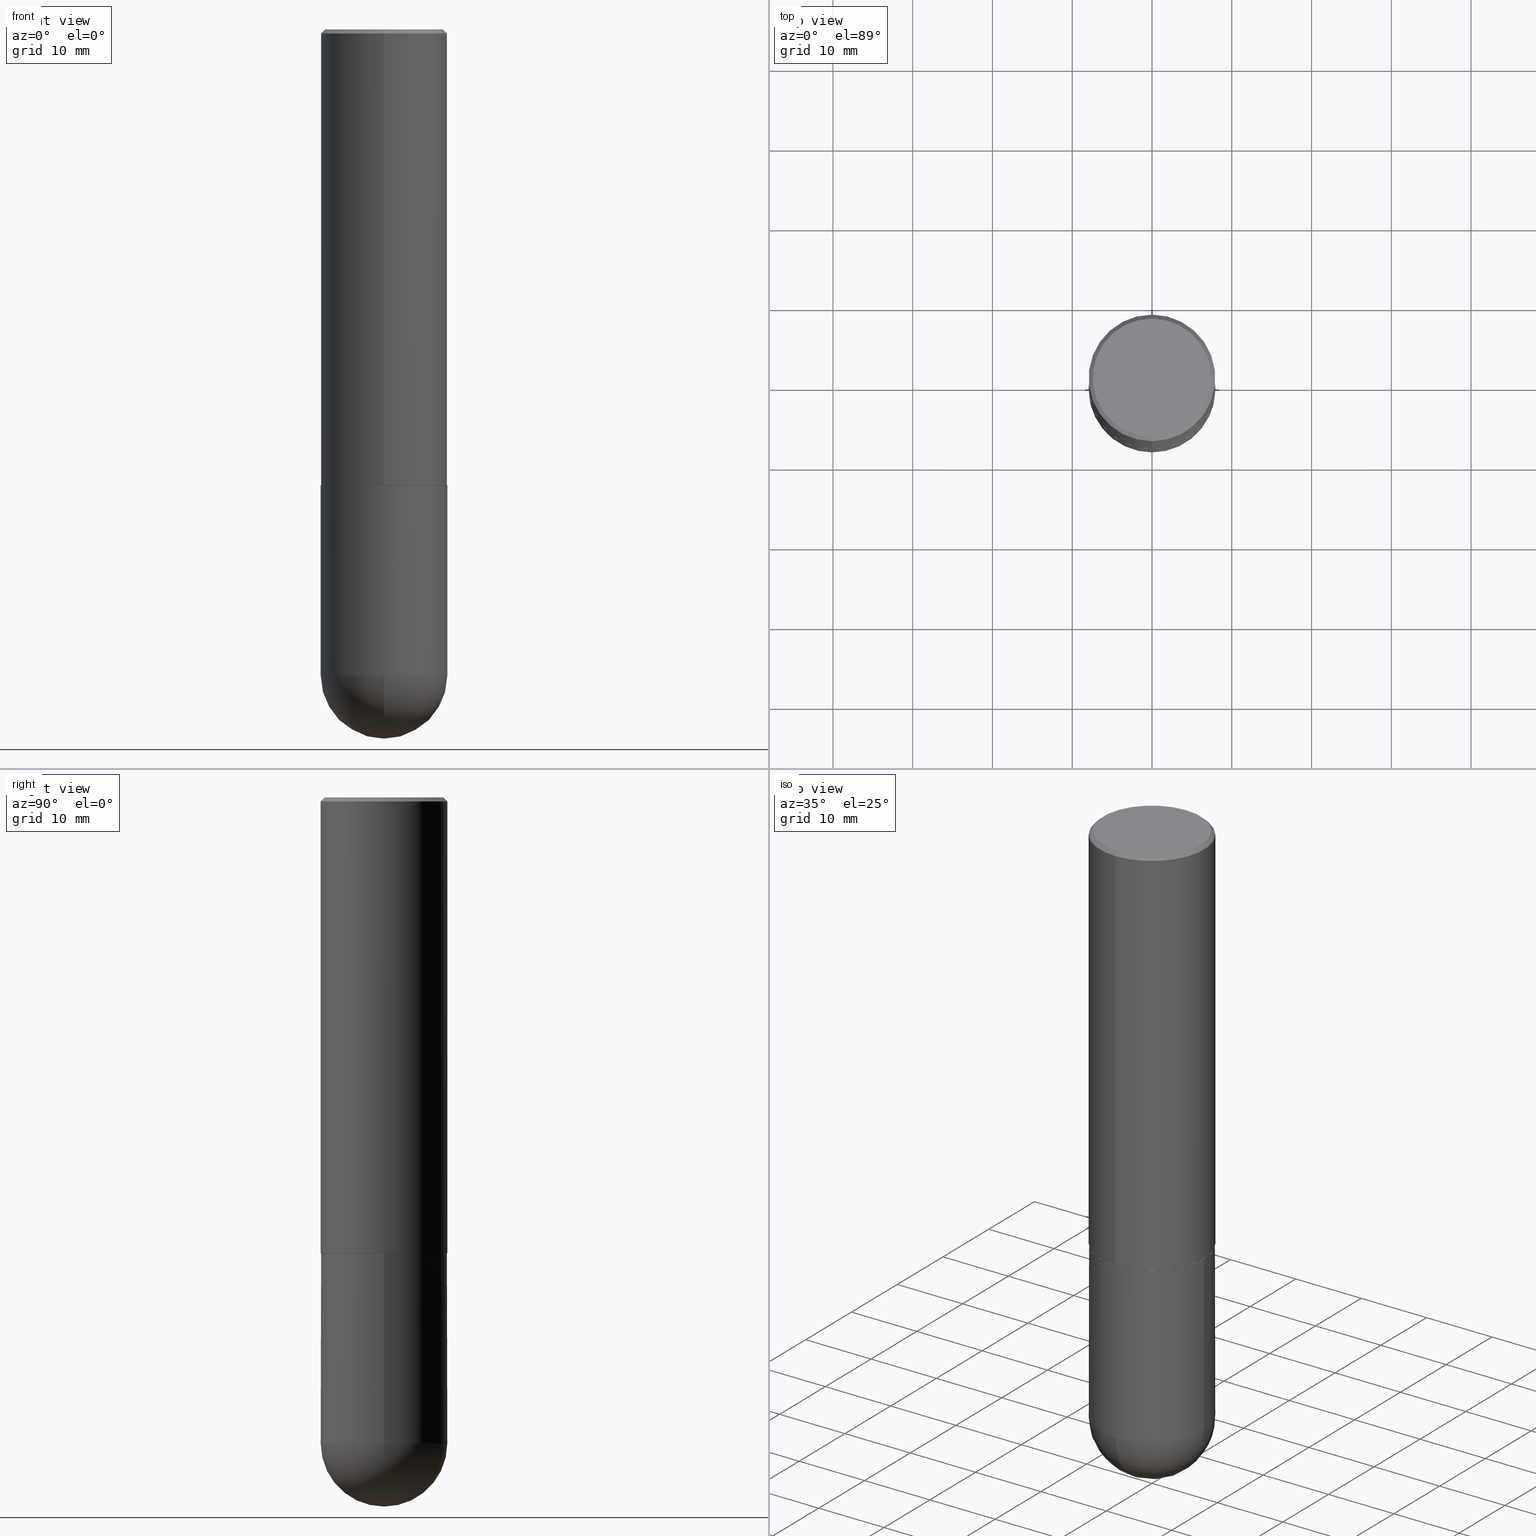
[diagram: canonical four-view strip — front | top / right | iso, engineering-drawing reading convention]
A machine part, canonical four-view strip (front | top / right | iso — engineering-drawing reading convention). The complete STEP part file that produces these views, byte-faithful:
ISO-10303-21;
HEADER;
FILE_DESCRIPTION (( 'STEP AP203' ),
    '1' );
FILE_NAME ('36545.STEP',
    '2024-02-21T19:02:43',
    ( '' ),
    ( '' ),
    'SwSTEP 2.0',
    'SolidWorks 2023',
    '' );
FILE_SCHEMA (( 'CONFIG_CONTROL_DESIGN' ));
ENDSEC;

DATA;
#1 = PERSON_AND_ORGANIZATION ( #398, #189 ) ;
#2 = EDGE_CURVE ( 'NONE', #115, #29, #119, .T. ) ;
#3 = DATE_AND_TIME ( #221, #114 ) ;
#4 = AXIS2_PLACEMENT_3D ( 'NONE', #106, #135, #43 ) ;
#5 =( LENGTH_UNIT ( ) NAMED_UNIT ( * ) SI_UNIT ( $, .METRE. ) );
#6 = VERTEX_POINT ( 'NONE', #150 ) ;
#7 = DIRECTION ( 'NONE',  ( -4.851104656540958753E-15, -0.7071067811865492381, -0.7071067811865457964 ) ) ;
#8 = CALENDAR_DATE ( 2024, 21, 2 ) ;
#9 = ORIENTED_EDGE ( 'NONE', *, *, #307, .T. ) ;
#10 = ADVANCED_FACE ( 'NONE', ( #338 ), #306, .T. ) ;
#11 = CARTESIAN_POINT ( 'NONE',  ( 4.890912166980584074E-31, -6.982999116932638204E-17, -0.02000000000000007327 ) ) ;
#12 = EDGE_LOOP ( 'NONE', ( #325, #410 ) ) ;
#13 = CC_DESIGN_SECURITY_CLASSIFICATION ( #309, ( #231 ) ) ;
#14 = DIRECTION ( 'NONE',  ( -2.445468806185136597E-29, 3.491481338843145583E-15, 1.000000000000000000 ) ) ;
#15 = DIRECTION ( 'NONE',  ( -2.445456083490282999E-29, 3.491499558466306603E-15, 1.000000000000000000 ) ) ;
#16 = VERTEX_POINT ( 'NONE', #235 ) ;
#17 = CARTESIAN_POINT ( 'NONE',  ( 5.502304813916556222E-29, -7.855833012397076871E-15, -2.249999999999999556 ) ) ;
#18 = ORIENTED_EDGE ( 'NONE', *, *, #184, .F. ) ;
#19 = DIRECTION ( 'NONE',  ( -2.445468806185136597E-29, 3.491481338843145583E-15, 1.000000000000000000 ) ) ;
#20 = ORIENTED_EDGE ( 'NONE', *, *, #85, .F. ) ;
#21 = AXIS2_PLACEMENT_3D ( 'NONE', #112, #89, #364 ) ;
#22 = AXIS2_PLACEMENT_3D ( 'NONE', #55, #109, #172 ) ;
#23 = APPROVAL_PERSON_ORGANIZATION ( #347, #316, #261 ) ;
#24 = DIRECTION ( 'NONE',  ( -2.445468806185136877E-29, 3.491481338843145188E-15, 1.000000000000000000 ) ) ;
#25 = CYLINDRICAL_SURFACE ( 'NONE', #113, 0.3125000000000002220 ) ;
#26 = DIRECTION ( 'NONE',  ( -2.445468806185136597E-29, 3.491481338843145583E-15, 1.000000000000000000 ) ) ;
#27 = DESIGN_CONTEXT ( 'detailed design', #406, 'design' ) ;
#28 = AXIS2_PLACEMENT_3D ( 'NONE', #299, #321, #288 ) ;
#29 = VERTEX_POINT ( 'NONE', #78 ) ;
#30 = ADVANCED_FACE ( 'NONE', ( #200 ), #25, .T. ) ;
#31 = ORIENTED_EDGE ( 'NONE', *, *, #254, .T. ) ;
#32 = ORIENTED_EDGE ( 'NONE', *, *, #276, .T. ) ;
#33 = PERSON_AND_ORGANIZATION_ROLE ( 'creator' ) ;
#34 = CARTESIAN_POINT ( 'NONE',  ( 5.502276187853136957E-29, -7.855874006549189956E-15, -2.250000000000000000 ) ) ;
#35 = DATE_TIME_ROLE ( 'creation_date' ) ;
#36 = APPROVAL_ROLE ( '' ) ;
#37 = CONICAL_SURFACE ( 'NONE', #237, 0.3114999999999999991, 0.7853981633974141952 ) ;
#38 = PERSON_AND_ORGANIZATION_ROLE ( 'design_owner' ) ;
#39 = ORIENTED_EDGE ( 'NONE', *, *, #2, .T. ) ;
#40 = ORIENTED_EDGE ( 'NONE', *, *, #2, .F. ) ;
#41 = DIRECTION ( 'NONE',  ( 5.024295867787889629E-15, 0.7071067811865257013, 0.7071067811865691111 ) ) ;
#42 = CLOSED_SHELL ( 'NONE', ( #154, #30, #102, #296, #267, #87, #169, #404 ) ) ;
#43 = DIRECTION ( 'NONE',  ( 1.000000000000000000, -6.982962677686269077E-15, 0.000000000000000000 ) ) ;
#44 = ORIENTED_EDGE ( 'NONE', *, *, #173, .F. ) ;
#45 = EDGE_CURVE ( 'NONE', #286, #358, #333, .T. ) ;
#46 = DIRECTION ( 'NONE',  ( -1.000000000000000000, 7.105427357601001070E-15, -4.926315508542082329E-29 ) ) ;
#47 = PLANE ( 'NONE',  #188 ) ;
#48 = DIRECTION ( 'NONE',  ( -6.982962677686265922E-15, -1.000000000000000000, 3.491499558466306603E-15 ) ) ;
#49 = DIRECTION ( 'NONE',  ( 1.000000000000000000, -6.982962677686269077E-15, 0.000000000000000000 ) ) ;
#50 = CARTESIAN_POINT ( 'NONE',  ( 2.182175836777035261E-15, 0.3124999999999887867, -3.187500000000000888 ) ) ;
#51 = CARTESIAN_POINT ( 'NONE',  ( 2.216893335571567797E-15, 0.3114999999999921720, -2.250000000000001332 ) ) ;
#52 = LINE ( 'NONE', #239, #93 ) ;
#53 = AXIS2_PLACEMENT_3D ( 'NONE', #17, #26, #130 ) ;
#54 = CC_DESIGN_APPROVAL ( #316, ( #309 ) ) ;
#55 = CARTESIAN_POINT ( 'NONE',  ( 2.182175836777013173E-15, 0.3124999999999921729, -2.250000000000000888 ) ) ;
#56 = CARTESIAN_POINT ( 'NONE',  ( 5.499830731769645034E-29, -7.852382506990722396E-15, -2.248999999999999666 ) ) ;
#57 = CONICAL_SURFACE ( 'NONE', #315, 0.3125000000000001665, 0.7853981633974472798 ) ;
#58 = PRODUCT_DEFINITION ( 'UNKNOWN', '', #231, #27 ) ;
#59 = DIRECTION ( 'NONE',  ( -2.445456083490282999E-29, 3.491499558466306603E-15, 1.000000000000000000 ) ) ;
#60 = EDGE_LOOP ( 'NONE', ( #194, #259, #108, #44 ) ) ;
#61 = FACE_OUTER_BOUND ( 'NONE', #318, .T. ) ;
#62 = EDGE_CURVE ( 'NONE', #6, #160, #242, .T. ) ;
#63 = APPROVAL_STATUS ( 'not_yet_approved' ) ;
#64 = PERSON_AND_ORGANIZATION ( #398, #189 ) ;
#65 = ORIENTED_EDGE ( 'NONE', *, *, #252, .T. ) ;
#66 = AXIS2_PLACEMENT_3D ( 'NONE', #366, #359, #138 ) ;
#67 = ORIENTED_EDGE ( 'NONE', *, *, #175, .T. ) ;
#68 = EDGE_CURVE ( 'NONE', #160, #6, #181, .T. ) ;
#69 = DIRECTION ( 'NONE',  ( 6.982962677686265922E-15, 1.000000000000000000, -3.491499558466306603E-15 ) ) ;
#70 = CARTESIAN_POINT ( 'NONE',  ( 2.112346210000095838E-15, 0.2924999999999999267, -8.206382045769005542E-16 ) ) ;
#71 = VERTEX_POINT ( 'NONE', #146 ) ;
#72 = FACE_OUTER_BOUND ( 'NONE', #282, .T. ) ;
#73 = CIRCLE ( 'NONE', #53, 0.3125000000000000000 ) ;
#74 = CARTESIAN_POINT ( 'NONE',  ( 0.000000000000000000, 0.000000000000000000, 0.000000000000000000 ) ) ;
#75 = ORIENTED_EDGE ( 'NONE', *, *, #374, .T. ) ;
#76 = AXIS2_PLACEMENT_3D ( 'NONE', #330, #211, #49 ) ;
#77 = CARTESIAN_POINT ( 'NONE',  ( 2.220446049250314264E-15, 0.3125000000000002220, -1.091093612020721528E-15 ) ) ;
#78 = CARTESIAN_POINT ( 'NONE',  ( -2.075300644325888282E-15, -0.2924999999999999267, 1.221889037125888235E-15 ) ) ;
#79 = DIRECTION ( 'NONE',  ( -2.445468806185136877E-29, 3.491481338843145188E-15, 1.000000000000000000 ) ) ;
#80 = DIRECTION ( 'NONE',  ( -2.445456083490282999E-29, 3.491499558466306603E-15, 1.000000000000000000 ) ) ;
#81 = DIRECTION ( 'NONE',  ( -6.982962677686265922E-15, -1.000000000000000000, 3.491499558466306603E-15 ) ) ;
#82 = ADVANCED_FACE ( 'NONE', ( #367 ), #298, .T. ) ;
#83 = FACE_OUTER_BOUND ( 'NONE', #12, .T. ) ;
#84 = VECTOR ( 'NONE', #368, 39.37007874015748143 ) ;
#85 = EDGE_CURVE ( 'NONE', #6, #349, #52, .T. ) ;
#86 = ORIENTED_EDGE ( 'NONE', *, *, #85, .T. ) ;
#87 = ADVANCED_FACE ( 'NONE', ( #61 ), #37, .T. ) ;
#88 = CIRCLE ( 'NONE', #66, 0.2924999999999999267 ) ;
#89 = DIRECTION ( 'NONE',  ( -1.000000000000000000, 6.982962677686265922E-15, -4.883557194083112901E-29 ) ) ;
#90 = VERTEX_POINT ( 'NONE', #91 ) ;
#91 = CARTESIAN_POINT ( 'NONE',  ( 2.220446049250342269E-15, 0.3124999999999924505, -2.249000000000000998 ) ) ;
#92 = CARTESIAN_POINT ( 'NONE',  ( 0.000000000000000000, 0.000000000000000000, 0.000000000000000000 ) ) ;
#93 = VECTOR ( 'NONE', #245, 39.37007874015748854 ) ;
#94 = CC_DESIGN_PERSON_AND_ORGANIZATION_ASSIGNMENT ( #125, #117, ( #231 ) ) ;
#95 = DIRECTION ( 'NONE',  ( 0.000000000000000000, 0.000000000000000000, 1.000000000000000000 ) ) ;
#96 = CLOSED_SHELL ( 'NONE', ( #122, #10, #82, #207, #180 ) ) ;
#97 = DIRECTION ( 'NONE',  ( 2.445456083490282999E-29, -3.491499558466306603E-15, -1.000000000000000000 ) ) ;
#98 = VECTOR ( 'NONE', #80, 39.37007874015748143 ) ;
#99 = ORIENTED_EDGE ( 'NONE', *, *, #374, .F. ) ;
#100 = LINE ( 'NONE', #250, #260 ) ;
#101 = ORIENTED_EDGE ( 'NONE', *, *, #307, .F. ) ;
#102 = ADVANCED_FACE ( 'NONE', ( #310 ), #378, .T. ) ;
#103 = CARTESIAN_POINT ( 'NONE',  ( 5.502276187853136957E-29, -7.855874006549188378E-15, -2.249999999999999556 ) ) ;
#104 = EDGE_LOOP ( 'NONE', ( #39, #67 ) ) ;
#105 = AXIS2_PLACEMENT_3D ( 'NONE', #74, #198, #165 ) ;
#106 = CARTESIAN_POINT ( 'NONE',  ( 7.794931819715121781E-29, -1.112909676756252622E-14, -3.187500000000000000 ) ) ;
#107 = CARTESIAN_POINT ( 'NONE',  ( 0.000000000000000000, 0.000000000000000000, 0.000000000000000000 ) ) ;
#108 = ORIENTED_EDGE ( 'NONE', *, *, #254, .F. ) ;
#109 = DIRECTION ( 'NONE',  ( 2.438088387897960049E-29, -3.491481338843145188E-15, -1.000000000000000000 ) ) ;
#110 = EDGE_CURVE ( 'NONE', #16, #71, #382, .T. ) ;
#111 = DIRECTION ( 'NONE',  ( 6.982962677686265922E-15, 1.000000000000000000, -3.496765431890253764E-15 ) ) ;
#112 = CARTESIAN_POINT ( 'NONE',  ( 7.463812041801236655E-29, -1.160327913570257494E-14, -3.187500000000000000 ) ) ;
#113 = AXIS2_PLACEMENT_3D ( 'NONE', #139, #371, #81 ) ;
#114 = LOCAL_TIME ( 14, 2, 43.00000000000000000, #279 ) ;
#115 = VERTEX_POINT ( 'NONE', #70 ) ;
#116 = ORIENTED_EDGE ( 'NONE', *, *, #62, .T. ) ;
#117 = PERSON_AND_ORGANIZATION_ROLE ( 'design_supplier' ) ;
#118 = SECURITY_CLASSIFICATION_LEVEL ( 'unclassified' ) ;
#119 = CIRCLE ( 'NONE', #361, 0.2924999999999999267 ) ;
#120 = AXIS2_PLACEMENT_3D ( 'NONE', #340, #59, #263 ) ;
#121 =( NAMED_UNIT ( * ) SI_UNIT ( $, .STERADIAN. ) SOLID_ANGLE_UNIT ( ) );
#122 = ADVANCED_FACE ( 'NONE', ( #163 ), #291, .T. ) ;
#123 = CALENDAR_DATE ( 2024, 21, 2 ) ;
#124 = EDGE_LOOP ( 'NONE', ( #272, #370, #18, #158, #388 ) ) ;
#125 = PERSON_AND_ORGANIZATION ( #398, #189 ) ;
#126 = ORIENTED_EDGE ( 'NONE', *, *, #110, .T. ) ;
#127 = CARTESIAN_POINT ( 'NONE',  ( 5.502304813916556222E-29, -7.855833012397076871E-15, -2.249999999999999556 ) ) ;
#128 = CIRCLE ( 'NONE', #308, 0.3125000000000002776 ) ;
#129 = LINE ( 'NONE', #233, #408 ) ;
#130 = DIRECTION ( 'NONE',  ( 1.000000000000000000, -6.982962677686269077E-15, 0.000000000000000000 ) ) ;
#131 = VERTEX_POINT ( 'NONE', #256 ) ;
#132 = CARTESIAN_POINT ( 'NONE',  ( -0.3125000000000000000, -7.272018840729490833E-15, -3.187500000000000000 ) ) ;
#133 = CARTESIAN_POINT ( 'NONE',  ( 7.463812041801236655E-29, -1.160327913570257494E-14, -3.187500000000000000 ) ) ;
#134 = CIRCLE ( 'NONE', #295, 0.3125000000000000000 ) ;
#135 = DIRECTION ( 'NONE',  ( -2.445468806185136597E-29, 3.491481338843145583E-15, 1.000000000000000000 ) ) ;
#136 = ORIENTED_EDGE ( 'NONE', *, *, #156, .F. ) ;
#137 = PRODUCT ( '36545', '36545', '', ( #217 ) ) ;
#138 = DIRECTION ( 'NONE',  ( -6.982962677686265133E-15, -1.000000000000000000, 3.491499558466306603E-15 ) ) ;
#139 = CARTESIAN_POINT ( 'NONE',  ( 0.000000000000000000, 0.000000000000000000, 0.000000000000000000 ) ) ;
#140 = CC_DESIGN_PERSON_AND_ORGANIZATION_ASSIGNMENT ( #1, #311, ( #231 ) ) ;
#141 = LINE ( 'NONE', #77, #98 ) ;
#142 = DIRECTION ( 'NONE',  ( -2.445456083490282999E-29, 3.491499558466306603E-15, 1.000000000000000000 ) ) ;
#143 = AXIS2_PLACEMENT_3D ( 'NONE', #56, #142, #403 ) ;
#144 = DIMENSIONAL_EXPONENTS ( 1.000000000000000000, 0.000000000000000000, 0.000000000000000000, 0.000000000000000000, 0.000000000000000000, 0.000000000000000000, 0.000000000000000000 ) ;
#145 = ORIENTED_EDGE ( 'NONE', *, *, #68, .T. ) ;
#146 = CARTESIAN_POINT ( 'NONE',  ( -2.143905624303604008E-15, -0.3125000000000002220, -0.01999999999999898040 ) ) ;
#147 = EDGE_CURVE ( 'NONE', #289, #314, #399, .T. ) ;
#148 = AXIS2_PLACEMENT_3D ( 'NONE', #266, #400, #111 ) ;
#149 = APPROVAL_PERSON_ORGANIZATION ( #247, #201, #36 ) ;
#150 = CARTESIAN_POINT ( 'NONE',  ( -2.175192874099216718E-15, -0.3115000000000078817, -2.249999999999999112 ) ) ;
#151 = APPROVAL_STATUS ( 'not_yet_approved' ) ;
#152 = DIRECTION ( 'NONE',  ( -2.445456083490282999E-29, 3.491499558466306603E-15, 1.000000000000000000 ) ) ;
#153 = COORDINATED_UNIVERSAL_TIME_OFFSET ( 5, 0, .BEHIND. ) ;
#154 = ADVANCED_FACE ( 'NONE', ( #258 ), #253, .T. ) ;
#155 = CIRCLE ( 'NONE', #301, 0.3125000000000002776 ) ;
#156 = EDGE_CURVE ( 'NONE', #349, #71, #234, .T. ) ;
#157 = AXIS2_PLACEMENT_3D ( 'NONE', #92, #95, #313 ) ;
#158 = ORIENTED_EDGE ( 'NONE', *, *, #342, .F. ) ;
#159 = APPLICATION_PROTOCOL_DEFINITION ( 'international standard', 'config_control_design', 1994, #406 ) ;
#160 = VERTEX_POINT ( 'NONE', #51 ) ;
#161 = CIRCLE ( 'NONE', #4, 0.3125000000000000000 ) ;
#162 = LOCAL_TIME ( 14, 2, 43.00000000000000000, #275 ) ;
#163 = FACE_OUTER_BOUND ( 'NONE', #124, .T. ) ;
#164 = ORIENTED_EDGE ( 'NONE', *, *, #110, .F. ) ;
#165 = DIRECTION ( 'NONE',  ( 1.000000000000000000, -6.982962677686266711E-15, 4.876176775795936353E-29 ) ) ;
#166 = CARTESIAN_POINT ( 'NONE',  ( 2.182175836776959530E-15, 0.3125000000000000555, -0.02000000000000116615 ) ) ;
#167 = CARTESIAN_POINT ( 'NONE',  ( 7.794931819715121781E-29, -1.112909676756252622E-14, -3.187500000000000000 ) ) ;
#168 = CARTESIAN_POINT ( 'NONE',  ( 5.502276187853136957E-29, -7.855874006549189956E-15, -2.250000000000000000 ) ) ;
#169 = ADVANCED_FACE ( 'NONE', ( #387 ), #47, .F. ) ;
#170 = CYLINDRICAL_SURFACE ( 'NONE', #105, 0.3125000000000000000 ) ;
#171 = DIRECTION ( 'NONE',  ( -6.982962677686265922E-15, -1.000000000000000000, 3.507991003100177457E-15 ) ) ;
#172 = DIRECTION ( 'NONE',  ( -1.000000000000000000, 6.982962677686265922E-15, -4.876176775795935793E-29 ) ) ;
#173 = EDGE_CURVE ( 'NONE', #358, #289, #161, .T. ) ;
#174 = AXIS2_PLACEMENT_3D ( 'NONE', #107, #357, #331 ) ;
#175 = EDGE_CURVE ( 'NONE', #29, #115, #88, .T. ) ;
#176 = ORIENTED_EDGE ( 'NONE', *, *, #303, .T. ) ;
#177 = MANIFOLD_SOLID_BREP ( 'Body-Move/Copy2[2]', #42 ) ;
#178 = EDGE_LOOP ( 'NONE', ( #116, #9, #240, #20 ) ) ;
#179 = DIRECTION ( 'NONE',  ( -2.445456083490282999E-29, 3.491499558466306603E-15, 1.000000000000000000 ) ) ;
#180 = ADVANCED_FACE ( 'NONE', ( #336 ), #170, .T. ) ;
#181 = CIRCLE ( 'NONE', #120, 0.3114999999999999991 ) ;
#182 = CIRCLE ( 'NONE', #143, 0.3125000000000002776 ) ;
#183 = DIRECTION ( 'NONE',  ( -6.982962677686265922E-15, -1.000000000000000000, 3.507991003100177457E-15 ) ) ;
#184 = EDGE_CURVE ( 'NONE', #229, #314, #73, .T. ) ;
#185 = COORDINATED_UNIVERSAL_TIME_OFFSET ( 5, 0, .BEHIND. ) ;
#186 =( CONVERSION_BASED_UNIT ( 'INCH', #317 ) LENGTH_UNIT ( ) NAMED_UNIT ( #144 ) );
#187 = ORIENTED_EDGE ( 'NONE', *, *, #303, .F. ) ;
#188 = AXIS2_PLACEMENT_3D ( 'NONE', #103, #228, #48 ) ;
#189 = ORGANIZATION ( 'UNSPECIFIED', 'UNSPECIFIED', '' ) ;
#190 = PERSON_AND_ORGANIZATION ( #398, #189 ) ;
#191 = ORIENTED_EDGE ( 'NONE', *, *, #156, .T. ) ;
#192 = CC_DESIGN_DATE_AND_TIME_ASSIGNMENT ( #281, #35, ( #58 ) ) ;
#193 = DIRECTION ( 'NONE',  ( -2.445468806185136597E-29, 3.491481338843145583E-15, 1.000000000000000000 ) ) ;
#194 = ORIENTED_EDGE ( 'NONE', *, *, #210, .F. ) ;
#196 = DIRECTION ( 'NONE',  ( 1.000000000000000000, -6.982962677686269077E-15, 0.000000000000000000 ) ) ;
#195 = CALENDAR_DATE ( 2024, 21, 2 ) ;
#197 = VECTOR ( 'NONE', #24, 39.37007874015748143 ) ;
#198 = DIRECTION ( 'NONE',  ( -2.445468806185136597E-29, 3.491481338843145583E-15, 1.000000000000000000 ) ) ;
#199 = DIRECTION ( 'NONE',  ( 1.000000000000000000, -6.982962677686265922E-15, 4.883557194083112340E-29 ) ) ;
#200 = FACE_OUTER_BOUND ( 'NONE', #249, .T. ) ;
#201 = APPROVAL ( #284, 'UNSPECIFIED' ) ;
#202 = DIRECTION ( 'NONE',  ( 6.982962677686265133E-15, 1.000000000000000000, -3.496765431890254947E-15 ) ) ;
#203 = CARTESIAN_POINT ( 'NONE',  ( 5.499830731769645034E-29, -7.852382506990722396E-15, -2.248999999999999666 ) ) ;
#204 = EDGE_LOOP ( 'NONE', ( #222, #65, #191, #164 ) ) ;
#205 = AXIS2_PLACEMENT_3D ( 'NONE', #168, #294, #171 ) ;
#206 = DIRECTION ( 'NONE',  ( -6.982962677686265133E-15, -1.000000000000000000, 3.496765431890254947E-15 ) ) ;
#207 = ADVANCED_FACE ( 'NONE', ( #83 ), #265, .F. ) ;
#208 = ORIENTED_EDGE ( 'NONE', *, *, #252, .F. ) ;
#209 = AXIS2_PLACEMENT_3D ( 'NONE', #11, #393, #290 ) ;
#210 = EDGE_CURVE ( 'NONE', #244, #358, #270, .T. ) ;
#211 = DIRECTION ( 'NONE',  ( -2.445468806185136597E-29, 3.491481338843145583E-15, 1.000000000000000000 ) ) ;
#212 = EDGE_LOOP ( 'NONE', ( #305, #396 ) ) ;
#213 = DIRECTION ( 'NONE',  ( 6.982962677686265133E-15, 1.000000000000000000, -3.496765431890254947E-15 ) ) ;
#214 = DATE_TIME_ROLE ( 'classification_date' ) ;
#215 = APPLICATION_CONTEXT ( 'configuration controlled 3d designs of mechanical parts and assemblies' ) ;
#216 = EDGE_CURVE ( 'NONE', #90, #16, #141, .T. ) ;
#217 = MECHANICAL_CONTEXT ( 'NONE', #215, 'mechanical' ) ;
#218 = ORIENTED_EDGE ( 'NONE', *, *, #337, .F. ) ;
#219 = VECTOR ( 'NONE', #7, 39.37007874015748143 ) ;
#220 = CARTESIAN_POINT ( 'NONE',  ( 2.042516583223232145E-15, 0.2924999999999999267, -9.209509127141472772E-16 ) ) ;
#221 = CALENDAR_DATE ( 2024, 21, 2 ) ;
#222 = ORIENTED_EDGE ( 'NONE', *, *, #216, .F. ) ;
#223 = PRODUCT_RELATED_PRODUCT_CATEGORY ( 'detail', '', ( #137 ) ) ;
#224 = CARTESIAN_POINT ( 'NONE',  ( -2.182175836776905099E-15, -0.3125000000000081601, -2.248999999999998778 ) ) ;
#225 = DIRECTION ( 'NONE',  ( 1.000000000000000000, -6.982962677686269077E-15, 0.000000000000000000 ) ) ;
#226 = ORIENTED_EDGE ( 'NONE', *, *, #342, .T. ) ;
#227 = DATE_AND_TIME ( #195, #383 ) ;
#228 = DIRECTION ( 'NONE',  ( -2.445456083490282718E-29, 3.491499558466306603E-15, 1.000000000000000000 ) ) ;
#229 = VERTEX_POINT ( 'NONE', #268 ) ;
#230 = VECTOR ( 'NONE', #323, 39.37007874015748143 ) ;
#231 = PRODUCT_DEFINITION_FORMATION_WITH_SPECIFIED_SOURCE ( 'ANY', '', #137, .NOT_KNOWN. ) ;
#232 = CARTESIAN_POINT ( 'NONE',  ( -2.182175836776959530E-15, -0.3125000000000002220, 1.091093612020721528E-15 ) ) ;
#233 = CARTESIAN_POINT ( 'NONE',  ( 0.3125000000000000000, -2.182175836776958347E-15, 1.523805242436230075E-29 ) ) ;
#234 = LINE ( 'NONE', #232, #84 ) ;
#235 = CARTESIAN_POINT ( 'NONE',  ( 2.182175836776959530E-15, 0.3125000000000000555, -0.02000000000000116615 ) ) ;
#236 = CARTESIAN_POINT ( 'NONE',  ( -0.3125000000000000000, 2.220446049250313081E-15, -1.537167215704658232E-29 ) ) ;
#237 = AXIS2_PLACEMENT_3D ( 'NONE', #34, #152, #183 ) ;
#238 =( GEOMETRIC_REPRESENTATION_CONTEXT ( 3 ) GLOBAL_UNCERTAINTY_ASSIGNED_CONTEXT ( ( #355 ) ) GLOBAL_UNIT_ASSIGNED_CONTEXT ( ( #186, #381, #121 ) ) REPRESENTATION_CONTEXT ( 'NONE', 'WORKASPACE' ) );
#239 = CARTESIAN_POINT ( 'NONE',  ( -2.175192874099216718E-15, -0.3115000000000078817, -2.249999999999999112 ) ) ;
#240 = ORIENTED_EDGE ( 'NONE', *, *, #409, .F. ) ;
#241 = ADVANCED_BREP_SHAPE_REPRESENTATION ( '36545', ( #326, #177, #157 ), #238 ) ;
#242 = CIRCLE ( 'NONE', #205, 0.3114999999999999991 ) ;
#243 = PRODUCT_DEFINITION_SHAPE ( 'NONE', 'NONE',  #58 ) ;
#244 = VERTEX_POINT ( 'NONE', #401 ) ;
#245 = DIRECTION ( 'NONE',  ( -4.937700262164378437E-15, -0.7071067811865208164, 0.7071067811865739960 ) ) ;
#246 = PERSON_AND_ORGANIZATION ( #398, #189 ) ;
#247 = PERSON_AND_ORGANIZATION ( #398, #189 ) ;
#248 = APPROVAL_ROLE ( '' ) ;
#249 = EDGE_LOOP ( 'NONE', ( #319, #322, #187, #136 ) ) ;
#250 = CARTESIAN_POINT ( 'NONE',  ( 2.213340621892766504E-15, 0.3114999999999921720, -2.250000000000001332 ) ) ;
#251 = ORIENTED_EDGE ( 'NONE', *, *, #276, .F. ) ;
#252 = EDGE_CURVE ( 'NONE', #90, #349, #128, .T. ) ;
#253 = CONICAL_SURFACE ( 'NONE', #28, 0.3114999999999999991, 0.7853981633974141952 ) ;
#254 = EDGE_CURVE ( 'NONE', #289, #131, #362, .T. ) ;
#255 = PLANE ( 'NONE',  #271 ) ;
#256 = CARTESIAN_POINT ( 'NONE',  ( -2.220446049250237350E-15, -0.3125000000000114908, -3.187499999999998668 ) ) ;
#257 = ORIENTED_EDGE ( 'NONE', *, *, #45, .F. ) ;
#258 = FACE_OUTER_BOUND ( 'NONE', #178, .T. ) ;
#259 = ORIENTED_EDGE ( 'NONE', *, *, #285, .T. ) ;
#260 = VECTOR ( 'NONE', #41, 39.37007874015748854 ) ;
#261 = APPROVAL_ROLE ( '' ) ;
#262 = FACE_OUTER_BOUND ( 'NONE', #204, .T. ) ;
#263 = DIRECTION ( 'NONE',  ( -6.982962677686265922E-15, -1.000000000000000000, 3.507991003100177457E-15 ) ) ;
#264 = APPROVAL_DATE_TIME ( #227, #316 ) ;
#265 = PLANE ( 'NONE',  #22 ) ;
#266 = CARTESIAN_POINT ( 'NONE',  ( 7.463812041801236655E-29, -1.160327913570257494E-14, -3.187500000000000000 ) ) ;
#267 = ADVANCED_FACE ( 'NONE', ( #262 ), #395, .T. ) ;
#268 = CARTESIAN_POINT ( 'NONE',  ( 0.3125000000000000000, -1.003800884917403522E-14, -2.249999999999999556 ) ) ;
#269 = CC_DESIGN_PERSON_AND_ORGANIZATION_ASSIGNMENT ( #64, #33, ( #58 ) ) ;
#270 = CIRCLE ( 'NONE', #273, 0.3125000000000002776 ) ;
#271 = AXIS2_PLACEMENT_3D ( 'NONE', #220, #352, #69 ) ;
#272 = ORIENTED_EDGE ( 'NONE', *, *, #173, .T. ) ;
#273 = AXIS2_PLACEMENT_3D ( 'NONE', #133, #199, #363 ) ;
#274 = ORIENTED_EDGE ( 'NONE', *, *, #210, .T. ) ;
#275 = COORDINATED_UNIVERSAL_TIME_OFFSET ( 5, 0, .BEHIND. ) ;
#276 = EDGE_CURVE ( 'NONE', #131, #286, #350, .T. ) ;
#277 = CARTESIAN_POINT ( 'NONE',  ( 4.890912166980584074E-31, -6.982999116932638204E-17, -0.02000000000000007327 ) ) ;
#278 = CALENDAR_DATE ( 2024, 21, 2 ) ;
#279 = COORDINATED_UNIVERSAL_TIME_OFFSET ( 5, 0, .BEHIND. ) ;
#280 = AXIS2_PLACEMENT_3D ( 'NONE', #297, #193, #196 ) ;
#281 = DATE_AND_TIME ( #8, #372 ) ;
#282 = EDGE_LOOP ( 'NONE', ( #99, #40, #341, #126 ) ) ;
#283 = CARTESIAN_POINT ( 'NONE',  ( -2.143905624303604008E-15, -0.3125000000000002220, -0.01999999999999898040 ) ) ;
#284 = APPROVAL_STATUS ( 'not_yet_approved' ) ;
#285 = EDGE_CURVE ( 'NONE', #244, #131, #155, .T. ) ;
#286 = VERTEX_POINT ( 'NONE', #384 ) ;
#287 = AXIS2_PLACEMENT_3D ( 'NONE', #344, #375, #206 ) ;
#288 = DIRECTION ( 'NONE',  ( -6.982962677686265922E-15, -1.000000000000000000, 3.507991003100177457E-15 ) ) ;
#289 = VERTEX_POINT ( 'NONE', #132 ) ;
#290 = DIRECTION ( 'NONE',  ( -6.982962677686265133E-15, -1.000000000000000000, 3.496765431890254947E-15 ) ) ;
#291 = CYLINDRICAL_SURFACE ( 'NONE', #346, 0.3125000000000000000 ) ;
#292 = CARTESIAN_POINT ( 'NONE',  ( -0.3125000000000000000, -7.272018840729487678E-15, -2.249999999999999556 ) ) ;
#293 = DIRECTION ( 'NONE',  ( -2.445468806185136597E-29, 3.491481338843145583E-15, 1.000000000000000000 ) ) ;
#294 = DIRECTION ( 'NONE',  ( -2.445456083490282999E-29, 3.491499558466306603E-15, 1.000000000000000000 ) ) ;
#295 = AXIS2_PLACEMENT_3D ( 'NONE', #127, #14, #389 ) ;
#296 = ADVANCED_FACE ( 'NONE', ( #72 ), #57, .T. ) ;
#297 = CARTESIAN_POINT ( 'NONE',  ( 7.794931819715121781E-29, -1.112909676756252622E-14, -3.187500000000000000 ) ) ;
#298 = SPHERICAL_SURFACE ( 'NONE', #148, 0.3125000000000002776 ) ;
#299 = CARTESIAN_POINT ( 'NONE',  ( 5.502276187853136957E-29, -7.855874006549189956E-15, -2.250000000000000000 ) ) ;
#300 = EDGE_CURVE ( 'NONE', #115, #16, #365, .T. ) ;
#301 = AXIS2_PLACEMENT_3D ( 'NONE', #343, #46, #327 ) ;
#302 = CC_DESIGN_APPROVAL ( #386, ( #231 ) ) ;
#303 = EDGE_CURVE ( 'NONE', #71, #16, #339, .T. ) ;
#304 = ORIENTED_EDGE ( 'NONE', *, *, #175, .F. ) ;
#305 = ORIENTED_EDGE ( 'NONE', *, *, #62, .F. ) ;
#306 = SPHERICAL_SURFACE ( 'NONE', #21, 0.3125000000000002776 ) ;
#307 = EDGE_CURVE ( 'NONE', #160, #90, #100, .T. ) ;
#308 = AXIS2_PLACEMENT_3D ( 'NONE', #203, #15, #329 ) ;
#309 = SECURITY_CLASSIFICATION ( '', '', #118 ) ;
#310 = FACE_OUTER_BOUND ( 'NONE', #385, .T. ) ;
#311 = PERSON_AND_ORGANIZATION_ROLE ( 'creator' ) ;
#312 = CC_DESIGN_PERSON_AND_ORGANIZATION_ASSIGNMENT ( #190, #38, ( #137 ) ) ;
#313 = DIRECTION ( 'NONE',  ( 1.000000000000000000, 0.000000000000000000, 0.000000000000000000 ) ) ;
#314 = VERTEX_POINT ( 'NONE', #292 ) ;
#315 = AXIS2_PLACEMENT_3D ( 'NONE', #320, #97, #202 ) ;
#316 = APPROVAL ( #63, 'UNSPECIFIED' ) ;
#317 = LENGTH_MEASURE_WITH_UNIT ( LENGTH_MEASURE( 0.02539999999999999897 ), #5 );
#318 = EDGE_LOOP ( 'NONE', ( #101, #145, #86, #208 ) ) ;
#319 = ORIENTED_EDGE ( 'NONE', *, *, #409, .T. ) ;
#320 = CARTESIAN_POINT ( 'NONE',  ( 4.890912166980584074E-31, -6.982999116932638204E-17, -0.02000000000000007327 ) ) ;
#321 = DIRECTION ( 'NONE',  ( -2.445456083490282999E-29, 3.491499558466306603E-15, 1.000000000000000000 ) ) ;
#322 = ORIENTED_EDGE ( 'NONE', *, *, #216, .T. ) ;
#323 = DIRECTION ( 'NONE',  ( 4.937700262164542520E-15, 0.7071067811865443531, -0.7071067811865506814 ) ) ;
#324 = CARTESIAN_POINT ( 'NONE',  ( 0.000000000000000000, 0.000000000000000000, 0.000000000000000000 ) ) ;
#325 = ORIENTED_EDGE ( 'NONE', *, *, #184, .T. ) ;
#326 = MANIFOLD_SOLID_BREP ( 'Body-Move/Copy2[1]', #96 ) ;
#327 = DIRECTION ( 'NONE',  ( -7.105427357601000281E-15, -1.000000000000000000, 0.000000000000000000 ) ) ;
#328 = COORDINATED_UNIVERSAL_TIME_OFFSET ( 5, 0, .BEHIND. ) ;
#329 = DIRECTION ( 'NONE',  ( -6.982962677686265922E-15, -1.000000000000000000, 3.496765431890253764E-15 ) ) ;
#330 = CARTESIAN_POINT ( 'NONE',  ( 7.794931819715121781E-29, -1.112909676756252622E-14, -3.187500000000000000 ) ) ;
#331 = DIRECTION ( 'NONE',  ( -6.982962677686265922E-15, -1.000000000000000000, 3.491499558466306603E-15 ) ) ;
#332 = ORIENTED_EDGE ( 'NONE', *, *, #300, .F. ) ;
#333 = CIRCLE ( 'NONE', #76, 0.3125000000000000000 ) ;
#334 = CC_DESIGN_DATE_AND_TIME_ASSIGNMENT ( #377, #214, ( #309 ) ) ;
#335 = APPROVAL_PERSON_ORGANIZATION ( #345, #386, #248 ) ;
#336 = FACE_OUTER_BOUND ( 'NONE', #354, .T. ) ;
#337 = EDGE_CURVE ( 'NONE', #314, #229, #134, .T. ) ;
#338 = FACE_OUTER_BOUND ( 'NONE', #60, .T. ) ;
#339 = CIRCLE ( 'NONE', #209, 0.3125000000000001665 ) ;
#340 = CARTESIAN_POINT ( 'NONE',  ( 5.502276187853136957E-29, -7.855874006549189956E-15, -2.250000000000000000 ) ) ;
#341 = ORIENTED_EDGE ( 'NONE', *, *, #300, .T. ) ;
#342 = EDGE_CURVE ( 'NONE', #286, #229, #129, .T. ) ;
#343 = CARTESIAN_POINT ( 'NONE',  ( 7.463812041801236655E-29, -1.160327913570257494E-14, -3.187500000000000000 ) ) ;
#344 = CARTESIAN_POINT ( 'NONE',  ( 4.890912166980584074E-31, -6.982999116932638204E-17, -0.02000000000000007327 ) ) ;
#345 = PERSON_AND_ORGANIZATION ( #398, #189 ) ;
#346 = AXIS2_PLACEMENT_3D ( 'NONE', #324, #293, #390 ) ;
#347 = PERSON_AND_ORGANIZATION ( #398, #189 ) ;
#348 = APPLICATION_PROTOCOL_DEFINITION ( 'international standard', 'config_control_design', 1994, #215 ) ;
#349 = VERTEX_POINT ( 'NONE', #224 ) ;
#350 = CIRCLE ( 'NONE', #280, 0.3125000000000000000 ) ;
#351 = CC_DESIGN_APPROVAL ( #201, ( #58 ) ) ;
#352 = DIRECTION ( 'NONE',  ( 2.445456083490282718E-29, -3.491499558466306603E-15, -1.000000000000000000 ) ) ;
#353 = APPROVAL_DATE_TIME ( #3, #201 ) ;
#354 = EDGE_LOOP ( 'NONE', ( #360, #31, #32, #226, #218 ) ) ;
#355 = UNCERTAINTY_MEASURE_WITH_UNIT (LENGTH_MEASURE( 1.000000000000000082E-05 ), #186, 'distance_accuracy_value', 'NONE');
#356 = FACE_OUTER_BOUND ( 'NONE', #104, .T. ) ;
#357 = DIRECTION ( 'NONE',  ( -2.445456083490282999E-29, 3.491499558466306603E-15, 1.000000000000000000 ) ) ;
#358 = VERTEX_POINT ( 'NONE', #50 ) ;
#359 = DIRECTION ( 'NONE',  ( -2.445456083490282999E-29, 3.491499558466306603E-15, 1.000000000000000000 ) ) ;
#360 = ORIENTED_EDGE ( 'NONE', *, *, #147, .F. ) ;
#361 = AXIS2_PLACEMENT_3D ( 'NONE', #407, #179, #405 ) ;
#362 = CIRCLE ( 'NONE', #369, 0.3125000000000000000 ) ;
#363 = DIRECTION ( 'NONE',  ( 6.982962677686265922E-15, 1.000000000000000000, 0.000000000000000000 ) ) ;
#364 = DIRECTION ( 'NONE',  ( 6.982962677686265922E-15, 1.000000000000000000, -3.496765431890253764E-15 ) ) ;
#365 = LINE ( 'NONE', #166, #230 ) ;
#366 = CARTESIAN_POINT ( 'NONE',  ( -4.906206447312317313E-45, 7.004835523395145485E-31, 2.006254162744939635E-16 ) ) ;
#367 = FACE_OUTER_BOUND ( 'NONE', #373, .T. ) ;
#368 = DIRECTION ( 'NONE',  ( -2.445456083490282999E-29, 3.491499558466306603E-15, 1.000000000000000000 ) ) ;
#369 = AXIS2_PLACEMENT_3D ( 'NONE', #167, #19, #225 ) ;
#370 = ORIENTED_EDGE ( 'NONE', *, *, #147, .T. ) ;
#371 = DIRECTION ( 'NONE',  ( -2.445456083490282999E-29, 3.491499558466306603E-15, 1.000000000000000000 ) ) ;
#372 = LOCAL_TIME ( 14, 2, 43.00000000000000000, #185 ) ;
#373 = EDGE_LOOP ( 'NONE', ( #391, #274, #257, #251 ) ) ;
#374 = EDGE_CURVE ( 'NONE', #29, #71, #380, .T. ) ;
#375 = DIRECTION ( 'NONE',  ( -2.445456083490282999E-29, 3.491499558466306603E-15, 1.000000000000000000 ) ) ;
#376 = PERSON_AND_ORGANIZATION_ROLE ( 'classification_officer' ) ;
#377 = DATE_AND_TIME ( #123, #402 ) ;
#378 = CONICAL_SURFACE ( 'NONE', #392, 0.3125000000000001665, 0.7853981633974472798 ) ;
#379 = DATE_AND_TIME ( #278, #162 ) ;
#380 = LINE ( 'NONE', #283, #219 ) ;
#381 =( NAMED_UNIT ( * ) PLANE_ANGLE_UNIT ( ) SI_UNIT ( $, .RADIAN. ) );
#382 = CIRCLE ( 'NONE', #287, 0.3125000000000001665 ) ;
#383 = LOCAL_TIME ( 14, 2, 43.00000000000000000, #328 ) ;
#384 = CARTESIAN_POINT ( 'NONE',  ( 0.3125000000000000000, -1.167464072675676384E-14, -3.187500000000000000 ) ) ;
#385 = EDGE_LOOP ( 'NONE', ( #304, #75, #176, #332 ) ) ;
#386 = APPROVAL ( #151, 'UNSPECIFIED' ) ;
#387 = FACE_OUTER_BOUND ( 'NONE', #212, .T. ) ;
#388 = ORIENTED_EDGE ( 'NONE', *, *, #45, .T. ) ;
#389 = DIRECTION ( 'NONE',  ( 1.000000000000000000, -6.982962677686269077E-15, 0.000000000000000000 ) ) ;
#390 = DIRECTION ( 'NONE',  ( 1.000000000000000000, -6.982962677686266711E-15, 4.876176775795936353E-29 ) ) ;
#391 = ORIENTED_EDGE ( 'NONE', *, *, #285, .F. ) ;
#392 = AXIS2_PLACEMENT_3D ( 'NONE', #277, #412, #213 ) ;
#393 = DIRECTION ( 'NONE',  ( -2.445456083490282999E-29, 3.491499558466306603E-15, 1.000000000000000000 ) ) ;
#394 = SHAPE_DEFINITION_REPRESENTATION ( #243, #241 ) ;
#395 = CYLINDRICAL_SURFACE ( 'NONE', #174, 0.3125000000000002220 ) ;
#396 = ORIENTED_EDGE ( 'NONE', *, *, #68, .F. ) ;
#397 = CC_DESIGN_PERSON_AND_ORGANIZATION_ASSIGNMENT ( #246, #376, ( #309 ) ) ;
#398 = PERSON ( 'UNSPECIFIED', 'UNSPECIFIED', 'UNSPECIFIED', ('UNSPECIFIED'), ('UNSPECIFIED'), ('UNSPECIFIED') ) ;
#399 = LINE ( 'NONE', #236, #197 ) ;
#400 = DIRECTION ( 'NONE',  ( -1.000000000000000000, 6.982962677686265922E-15, -4.883557194083112901E-29 ) ) ;
#401 = CARTESIAN_POINT ( 'NONE',  ( 8.241383017002520278E-29, -1.267523194785438148E-14, -3.500000000000000444 ) ) ;
#402 = LOCAL_TIME ( 14, 2, 43.00000000000000000, #153 ) ;
#403 = DIRECTION ( 'NONE',  ( -6.982962677686265922E-15, -1.000000000000000000, 3.496765431890253764E-15 ) ) ;
#404 = ADVANCED_FACE ( 'NONE', ( #356 ), #255, .F. ) ;
#405 = DIRECTION ( 'NONE',  ( -6.982962677686265133E-15, -1.000000000000000000, 3.491499558466306603E-15 ) ) ;
#406 = APPLICATION_CONTEXT ( 'configuration controlled 3d designs of mechanical parts and assemblies' ) ;
#407 = CARTESIAN_POINT ( 'NONE',  ( -4.906206447312317313E-45, 7.004835523395145485E-31, 2.006254162744939635E-16 ) ) ;
#408 = VECTOR ( 'NONE', #79, 39.37007874015748143 ) ;
#409 = EDGE_CURVE ( 'NONE', #349, #90, #182, .T. ) ;
#410 = ORIENTED_EDGE ( 'NONE', *, *, #337, .T. ) ;
#411 = APPROVAL_DATE_TIME ( #379, #386 ) ;
#412 = DIRECTION ( 'NONE',  ( 2.445456083490282999E-29, -3.491499558466306603E-15, -1.000000000000000000 ) ) ;
ENDSEC;
END-ISO-10303-21;
